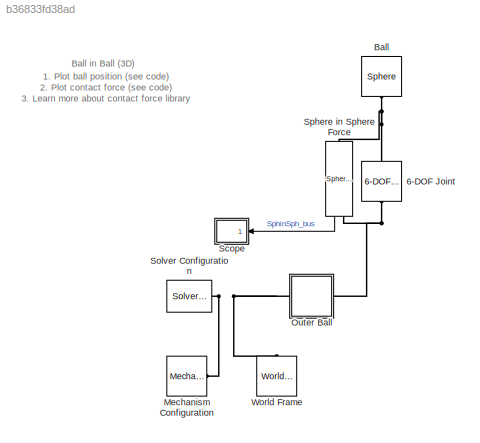
MODEL slx_b36833fd38ad
KIND model
CONFIG AbsTol = 1e-5
CONFIG FixedStep = auto
CONFIG MaxStep = 1e-2
CONFIG MinStep = auto
CONFIG PreLoadFcn = outer_ball.outer_rad=1.05;\nouter_ball.inner_rad=1;\n\ninner_ball.rad = 0.4;\n
CONFIG RelTol = 1e-4
CONFIG SampleTimeConstraint = Unconstrained
CONFIG Solver = ode23t
CONFIG SolverMode = Auto
CONFIG SolverName = ode23t
CONFIG StartFcn = tic;
CONFIG StartTime = 0.0
CONFIG StopFcn = Elapsed_Sim_Time = toc;\ndisp(['Elapsed Sim Time = ' num2str(Elapsed_Sim_Time)]);\n
CONFIG StopTime = 10
BLOCK [Reference] 6-DOF Joint  REF=sm_lib/Joints/6-DOF Joint
  Ports = [0, 0, 0, 0, 0, 1, 1]
  SourceBlock = sm_lib/Joints/6-DOF Joint
  SourceType = 6-DOF Joint
BLOCK [Reference] Ball  REF=Parts_Lib/Sphere
  Ports = [0, 0, 0, 0, 0, 1]
  SourceBlock = Parts_Lib/Sphere
  SourceType = Sphere with Markings
  Tag = CustomStyle
BLOCK [Reference] Mechanism Configuration  REF=sm_lib/Utilities/Mechanism
Configuration
  Ports = [0, 0, 0, 0, 0, 0, 1]
  SourceBlock = sm_lib/Utilities/Mechanism\nConfiguration
  SourceType = Mechanism\nConfiguration
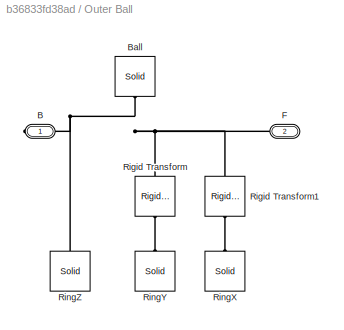
BLOCK [SubSystem] Outer Ball
  Ports = [0, 0, 0, 0, 0, 1, 1]
  RequestExecContextInheritance = off
  Tag = CustomStyle
  Variant = off
BLOCK [PMIOPort] Outer Ball/B
  Port = 1
  Side = Right
BLOCK [Reference] Outer Ball/Ball  REF=sm_lib/Body Elements/Solid
  Ports = [0, 0, 0, 0, 0, 0, 1]
  SourceBlock = sm_lib/Body Elements/Solid
  SourceType = Solid
BLOCK [PMIOPort] Outer Ball/F
  Port = 2
  Side = Left
BLOCK [Reference] Outer Ball/Rigid Transform  REF=sm_lib/Frames and
Transforms/Rigid
Transform
  Ports = [0, 0, 0, 0, 0, 1, 1]
  SourceBlock = sm_lib/Frames and\nTransforms/Rigid\nTransform
  SourceType = Rigid\nTransform
BLOCK [Reference] Outer Ball/Rigid Transform1  REF=sm_lib/Frames and
Transforms/Rigid
Transform
  Ports = [0, 0, 0, 0, 0, 1, 1]
  SourceBlock = sm_lib/Frames and\nTransforms/Rigid\nTransform
  SourceType = Rigid\nTransform
BLOCK [Reference] Outer Ball/RingX  REF=sm_lib/Body Elements/Solid
  Ports = [0, 0, 0, 0, 0, 0, 1]
  SourceBlock = sm_lib/Body Elements/Solid
  SourceType = Solid
BLOCK [Reference] Outer Ball/RingY  REF=sm_lib/Body Elements/Solid
  Ports = [0, 0, 0, 0, 0, 0, 1]
  SourceBlock = sm_lib/Body Elements/Solid
  SourceType = Solid
BLOCK [Reference] Outer Ball/RingZ  REF=sm_lib/Body Elements/Solid
  Ports = [0, 0, 0, 0, 0, 0, 1]
  SourceBlock = sm_lib/Body Elements/Solid
  SourceType = Solid
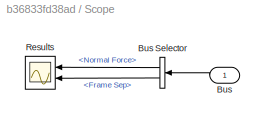
BLOCK [SubSystem] Scope
  Ports = [1]
  RequestExecContextInheritance = off
  Variant = off
BLOCK [Inport] Scope/Bus
  IconDisplay = Port number
BLOCK [BusSelector] Scope/Bus Selector
  OutputSignals = Normal Force,Frame Sep
  Ports = [1, 2]
BLOCK [Scope] Scope/Results
  NumInputPorts = 2
  Ports = [2]
  ScopeSpecificationString = C++SS(StrPVP(Location,[574, 91, 898, 432]),StrPVP(Open,off),StrPVP(ZoomMode,yonly),MxPVP(AxesTitles,24,struct('axes1','%<SignalLabel>','axes2','%<SignalLabel>')),MxPVP(ScopeGraphics,28,struct('FigureColor','[0.501960784313725 0.501960784313725 0.501960784313725]','AxesColor','[0 0 0]','AxesTickColor','[1 1 1]','LineColors','[1 1 0;1 0 1;0 1 1;1 0 0;0 1 0;0 0 1]','LineStyles','-|-|-|-|-|-','LineWid...<+306ch>
  Tag = PublishScope
BLOCK [Reference] Solver Configuration  REF=nesl_utility/Solver
Configuration
  Ports = [0, 0, 0, 0, 0, 0, 1]
  SourceBlock = nesl_utility/Solver\nConfiguration
  SourceType = Solver\nConfiguration
BLOCK [Reference] Sphere in Sphere Force  REF=Contact_Forces_Lib/3D/Sphere in Sphere Force
  Ports = [0, 1, 0, 0, 0, 1, 1]
  SourceBlock = Contact_Forces_Lib/3D/Sphere in Sphere Force
  SourceType = Sphere in Sphere Force
BLOCK [Reference] World Frame  REF=sm_lib/Frames and
Transforms/World Frame
  Ports = [0, 0, 0, 0, 0, 0, 1]
  SourceBlock = sm_lib/Frames and\nTransforms/World Frame
  SourceType = World Frame
ANNOTATION (root): 1. Plot ball position ( see code ) 2. Plot contact force ( see code ) 3. Learn more about contact force library
ANNOTATION (root): Ball in Ball (3D)
LINE Scope/Bus Selector:1 -> Scope/Results:1
LINE Scope/Bus Selector:2 -> Scope/Results:2
LINE Scope/Bus:1 -> Scope/Bus Selector:1
LINE Sphere in Sphere Force:1 -> Scope:1
PNET net1: 6-DOF Joint:LConn1 -- Outer Ball:LConn1 -- Sphere in Sphere Force:RConn1
PNET net2: 6-DOF Joint:RConn1 -- Ball:LConn1 -- Sphere in Sphere Force:LConn1
PNET net3: Mechanism Configuration:RConn1 -- Outer Ball:RConn1 -- Solver Configuration:RConn1 -- World Frame:RConn1
PNET net4: Outer Ball/B:RConn1 -- Outer Ball/Ball:RConn1 -- Outer Ball/F:RConn1 -- Outer Ball/Rigid Transform1:LConn1 -- Outer Ball/Rigid Transform:LConn1 -- Outer Ball/RingZ:RConn1
PLINE Outer Ball/Rigid Transform1:RConn1 -- Outer Ball/RingX:RConn1
PLINE Outer Ball/Rigid Transform:RConn1 -- Outer Ball/RingY:RConn1
note: PNET lines group multi-terminal physical nets as a canonical sorted terminal list (undirected conserving connections); 2-terminal nets keep the pairwise PLINE form
